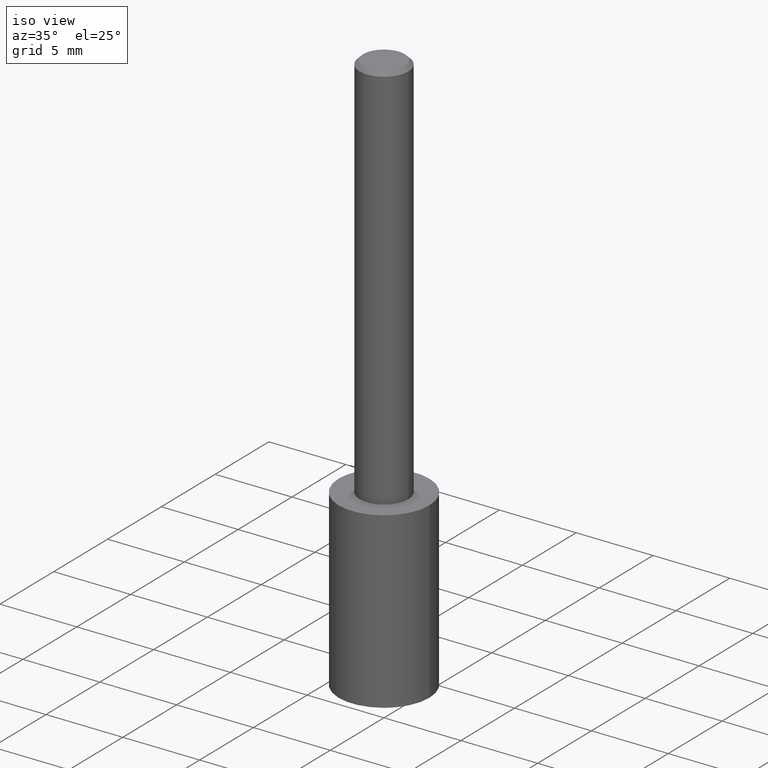
[diagram: clean part render]
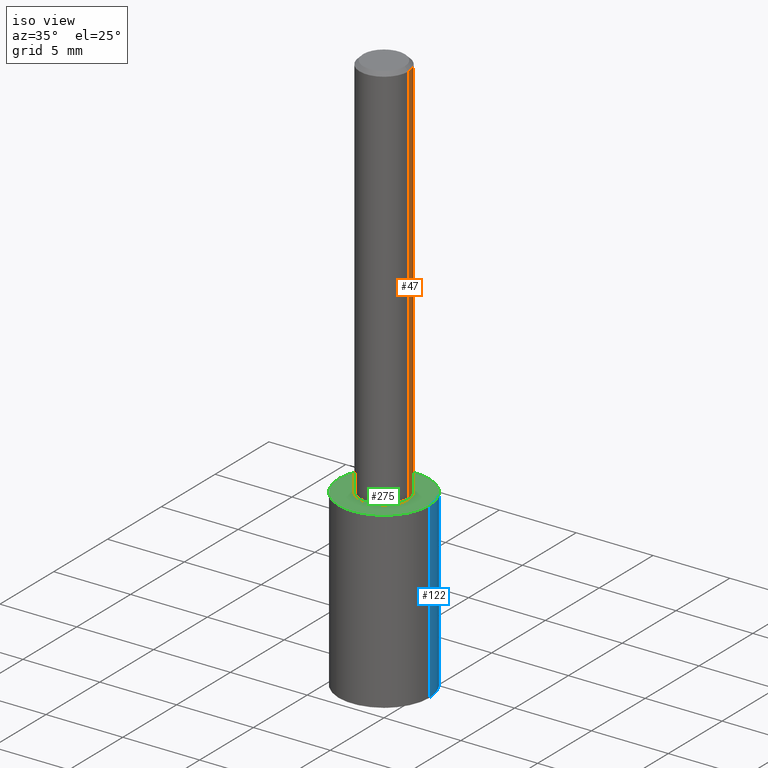
[diagram: same view with three faces highlighted in distinct colors, each labeled with its STEP entity id]
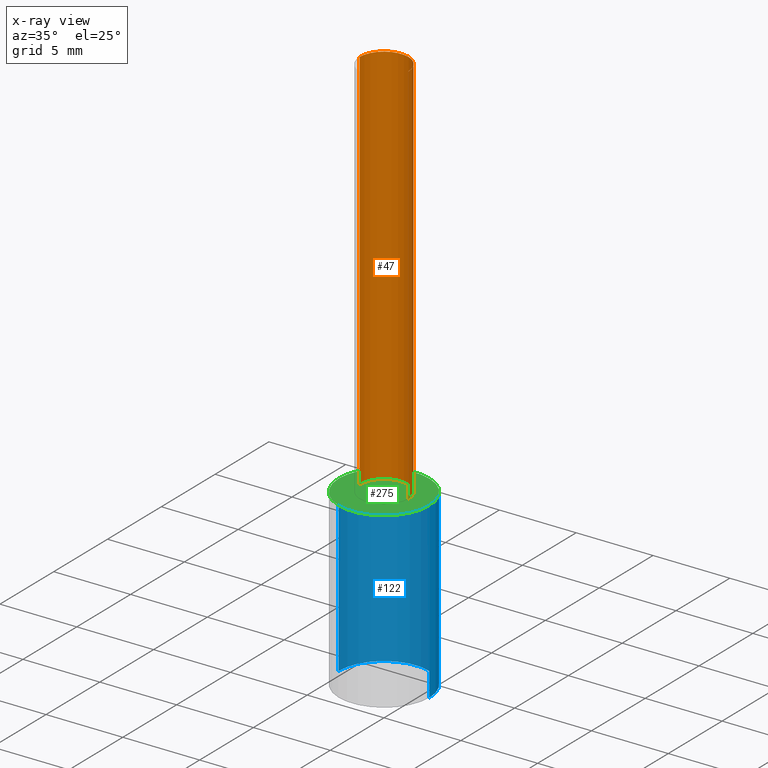
[diagram: x-ray of the same camera — body ghosted, the three highlighted faces saturated]
A machine part, iso view with three faces highlighted in distinct colors.
The next image is the same camera in x-ray (body ghosted, the three faces saturated) — at least one of them is partly hidden behind the body in this view.
Their STEP definitions:

[orange] entity #47 — the highlighted cylindrical surface (edge-blend (fillet) strip) has radius 1.5875 mm, axis along (-0, 0, 1).
#9 = DIRECTION ( 'NONE',  ( -2.445468806185136597E-29, 3.491481338843145583E-15, 1.000000000000000000 ) ) ;
#27 = AXIS2_PLACEMENT_3D ( 'NONE', #277, #9, #39 ) ;
#34 = CARTESIAN_POINT ( 'NONE',  ( 0.06250000000000006939, -4.364351673553921624E-16, 3.047610484872463374E-30 ) ) ;
#36 = VECTOR ( 'NONE', #120, 39.37007874015748143 ) ;
#38 = EDGE_CURVE ( 'NONE', #308, #177, #187, .T. ) ;
#39 = DIRECTION ( 'NONE',  ( 1.000000000000000000, -6.982962677686266711E-15, 0.000000000000000000 ) ) ;
#47 = ADVANCED_FACE ( 'NONE', ( #225 ), #228, .T. ) ;
#54 = EDGE_CURVE ( 'NONE', #177, #210, #90, .T. ) ;
#59 = CARTESIAN_POINT ( 'NONE',  ( -0.06250000000000000000, -1.318017778347336672E-15, -0.009375000000000069042 ) ) ;
#75 = EDGE_CURVE ( 'NONE', #308, #98, #220, .T. ) ;
#90 = LINE ( 'NONE', #332, #158 ) ;
#98 = VERTEX_POINT ( 'NONE', #173 ) ;
#107 = AXIS2_PLACEMENT_3D ( 'NONE', #199, #222, #140 ) ;
#110 = CIRCLE ( 'NONE', #27, 0.06250000000000000000 ) ;
#120 = DIRECTION ( 'NONE',  ( -2.445468806185136877E-29, 3.491481338843145188E-15, 1.000000000000000000 ) ) ;
#140 = DIRECTION ( 'NONE',  ( 1.000000000000000000, -6.982962677686266711E-15, 4.876176775795935793E-29 ) ) ;
#142 = DIRECTION ( 'NONE',  ( -2.445468806185136597E-29, 3.491481338843145583E-15, 1.000000000000000000 ) ) ;
#143 = CARTESIAN_POINT ( 'NONE',  ( -0.06250000000000012490, -1.318017778347335489E-15, -1.000000000000000222 ) ) ;
#151 = CARTESIAN_POINT ( 'NONE',  ( 0.06250000000000012490, -3.927916506198539224E-15, -1.000000000000000222 ) ) ;
#158 = VECTOR ( 'NONE', #278, 39.37007874015748143 ) ;
#173 = CARTESIAN_POINT ( 'NONE',  ( 0.06250000000000000000, -4.691678049070464390E-16, -0.009375000000000069042 ) ) ;
#177 = VERTEX_POINT ( 'NONE', #143 ) ;
#183 = ORIENTED_EDGE ( 'NONE', *, *, #75, .F. ) ;
#187 = CIRCLE ( 'NONE', #230, 0.06250000000000012490 ) ;
#199 = CARTESIAN_POINT ( 'NONE',  ( 0.000000000000000000, 0.000000000000000000, 0.000000000000000000 ) ) ;
#201 = EDGE_CURVE ( 'NONE', #98, #210, #110, .T. ) ;
#205 = ORIENTED_EDGE ( 'NONE', *, *, #38, .T. ) ;
#210 = VERTEX_POINT ( 'NONE', #59 ) ;
#220 = LINE ( 'NONE', #34, #36 ) ;
#221 = ORIENTED_EDGE ( 'NONE', *, *, #201, .F. ) ;
#222 = DIRECTION ( 'NONE',  ( -2.445468806185136597E-29, 3.491481338843145583E-15, 1.000000000000000000 ) ) ;
#225 = FACE_OUTER_BOUND ( 'NONE', #320, .T. ) ;
#228 = CYLINDRICAL_SURFACE ( 'NONE', #107, 0.06250000000000006939 ) ;
#230 = AXIS2_PLACEMENT_3D ( 'NONE', #312, #142, #251 ) ;
#251 = DIRECTION ( 'NONE',  ( 1.000000000000000000, -6.982962677686264344E-15, 0.000000000000000000 ) ) ;
#277 = CARTESIAN_POINT ( 'NONE',  ( 2.292627005798582375E-31, -3.273263755165473266E-17, -0.009375000000000069042 ) ) ;
#278 = DIRECTION ( 'NONE',  ( -2.445468806185136877E-29, 3.491481338843145188E-15, 1.000000000000000000 ) ) ;
#306 = ORIENTED_EDGE ( 'NONE', *, *, #54, .T. ) ;
#308 = VERTEX_POINT ( 'NONE', #151 ) ;
#312 = CARTESIAN_POINT ( 'NONE',  ( 2.445468806185137438E-29, -3.491481338843146371E-15, -1.000000000000000222 ) ) ;
#320 = EDGE_LOOP ( 'NONE', ( #205, #306, #221, #183 ) ) ;
#332 = CARTESIAN_POINT ( 'NONE',  ( -0.06250000000000006939, 4.440892098500631092E-16, -3.074334431409319267E-30 ) ) ;

[blue] entity #122 — the highlighted cylindrical surface (partial cylindrical patch) has radius 2.9502 mm, axis along (-0, 0, 1).
#14 = CARTESIAN_POINT ( 'NONE',  ( 0.1161500000000000032, -4.302552453856406512E-15, -1.000000000000000222 ) ) ;
#22 = EDGE_LOOP ( 'NONE', ( #295, #207, #69, #128 ) ) ;
#45 = CARTESIAN_POINT ( 'NONE',  ( -0.1161500000000000310, -4.222822284559862787E-15, -1.445838365505297096 ) ) ;
#68 = CARTESIAN_POINT ( 'NONE',  ( 2.445468806185136877E-29, -3.491481338843145977E-15, -1.000000000000000222 ) ) ;
#69 = ORIENTED_EDGE ( 'NONE', *, *, #198, .F. ) ;
#74 = CIRCLE ( 'NONE', #280, 0.1161500000000000032 ) ;
#85 = DIRECTION ( 'NONE',  ( -2.445468806185136597E-29, 3.491481338843145583E-15, 1.000000000000000000 ) ) ;
#88 = CIRCLE ( 'NONE', #217, 0.1161500000000000032 ) ;
#115 = VERTEX_POINT ( 'NONE', #163 ) ;
#117 = CARTESIAN_POINT ( 'NONE',  ( 0.1161500000000000310, -5.859188787158480302E-15, -1.445838365505297096 ) ) ;
#119 = DIRECTION ( 'NONE',  ( -2.445468806185136597E-29, 3.491481338843145583E-15, 1.000000000000000000 ) ) ;
#122 = ADVANCED_FACE ( 'NONE', ( #215 ), #169, .T. ) ;
#127 = CARTESIAN_POINT ( 'NONE',  ( -0.1161500000000000032, -2.666185951257790180E-15, -1.000000000000000222 ) ) ;
#128 = ORIENTED_EDGE ( 'NONE', *, *, #175, .F. ) ;
#145 = CARTESIAN_POINT ( 'NONE',  ( 3.535752621628908194E-29, -5.048117672145220556E-15, -1.445838365505297096 ) ) ;
#152 = AXIS2_PLACEMENT_3D ( 'NONE', #329, #85, #326 ) ;
#153 = EDGE_CURVE ( 'NONE', #204, #314, #74, .T. ) ;
#163 = CARTESIAN_POINT ( 'NONE',  ( -0.1161500000000000032, -3.444504117908826680E-15, -1.000000000000000222 ) ) ;
#169 = CYLINDRICAL_SURFACE ( 'NONE', #152, 0.1161500000000000032 ) ;
#175 = EDGE_CURVE ( 'NONE', #204, #286, #255, .T. ) ;
#186 = CARTESIAN_POINT ( 'NONE',  ( 0.1161500000000000032, -4.302552453856405723E-15, -1.000000000000000222 ) ) ;
#198 = EDGE_CURVE ( 'NONE', #286, #115, #88, .T. ) ;
#204 = VERTEX_POINT ( 'NONE', #117 ) ;
#207 = ORIENTED_EDGE ( 'NONE', *, *, #335, .T. ) ;
#215 = FACE_OUTER_BOUND ( 'NONE', #22, .T. ) ;
#217 = AXIS2_PLACEMENT_3D ( 'NONE', #68, #119, #284 ) ;
#223 = DIRECTION ( 'NONE',  ( -2.445468806185136877E-29, 3.491481338843145188E-15, 1.000000000000000000 ) ) ;
#229 = DIRECTION ( 'NONE',  ( -2.445468806185136597E-29, 3.491481338843145583E-15, 1.000000000000000000 ) ) ;
#238 = LINE ( 'NONE', #127, #276 ) ;
#255 = LINE ( 'NONE', #14, #328 ) ;
#263 = DIRECTION ( 'NONE',  ( -2.445468806185136877E-29, 3.491481338843145188E-15, 1.000000000000000000 ) ) ;
#276 = VECTOR ( 'NONE', #263, 39.37007874015748143 ) ;
#279 = DIRECTION ( 'NONE',  ( 1.000000000000000000, -6.982962677686265922E-15, 0.000000000000000000 ) ) ;
#280 = AXIS2_PLACEMENT_3D ( 'NONE', #145, #229, #279 ) ;
#284 = DIRECTION ( 'NONE',  ( 1.000000000000000000, -6.982962677686265922E-15, 0.000000000000000000 ) ) ;
#286 = VERTEX_POINT ( 'NONE', #186 ) ;
#295 = ORIENTED_EDGE ( 'NONE', *, *, #153, .T. ) ;
#314 = VERTEX_POINT ( 'NONE', #45 ) ;
#326 = DIRECTION ( 'NONE',  ( 1.000000000000000000, -6.982962677686265922E-15, 0.000000000000000000 ) ) ;
#328 = VECTOR ( 'NONE', #223, 39.37007874015748143 ) ;
#329 = CARTESIAN_POINT ( 'NONE',  ( 2.445468806185137438E-29, -3.491481338843146371E-15, -1.000000000000000222 ) ) ;
#335 = EDGE_CURVE ( 'NONE', #314, #115, #238, .T. ) ;

[green] entity #275 — the highlighted planar face has unit normal (0, -0, -1).
#1 = EDGE_LOOP ( 'NONE', ( #71, #5 ) ) ;
#5 = ORIENTED_EDGE ( 'NONE', *, *, #297, .T. ) ;
#41 = DIRECTION ( 'NONE',  ( -2.445468806185136597E-29, 3.491481338843145583E-15, 1.000000000000000000 ) ) ;
#48 = DIRECTION ( 'NONE',  ( 2.438088387897960049E-29, -3.491481338843145188E-15, -1.000000000000000000 ) ) ;
#53 = FACE_OUTER_BOUND ( 'NONE', #1, .T. ) ;
#66 = AXIS2_PLACEMENT_3D ( 'NONE', #96, #48, #316 ) ;
#68 = CARTESIAN_POINT ( 'NONE',  ( 2.445468806185136877E-29, -3.491481338843145977E-15, -1.000000000000000222 ) ) ;
#70 = DIRECTION ( 'NONE',  ( 1.000000000000000000, -6.982962677686265922E-15, 0.000000000000000000 ) ) ;
#71 = ORIENTED_EDGE ( 'NONE', *, *, #198, .T. ) ;
#88 = CIRCLE ( 'NONE', #217, 0.1161500000000000032 ) ;
#94 = AXIS2_PLACEMENT_3D ( 'NONE', #264, #41, #70 ) ;
#96 = CARTESIAN_POINT ( 'NONE',  ( 3.266665215176512903E-29, -2.315481341570540478E-15, -1.000000000000000222 ) ) ;
#115 = VERTEX_POINT ( 'NONE', #163 ) ;
#119 = DIRECTION ( 'NONE',  ( -2.445468806185136597E-29, 3.491481338843145583E-15, 1.000000000000000000 ) ) ;
#163 = CARTESIAN_POINT ( 'NONE',  ( -0.1161500000000000032, -3.444504117908826680E-15, -1.000000000000000222 ) ) ;
#179 = CIRCLE ( 'NONE', #94, 0.1161500000000000032 ) ;
#186 = CARTESIAN_POINT ( 'NONE',  ( 0.1161500000000000032, -4.302552453856405723E-15, -1.000000000000000222 ) ) ;
#198 = EDGE_CURVE ( 'NONE', #286, #115, #88, .T. ) ;
#217 = AXIS2_PLACEMENT_3D ( 'NONE', #68, #119, #284 ) ;
#260 = PLANE ( 'NONE',  #66 ) ;
#264 = CARTESIAN_POINT ( 'NONE',  ( 2.445468806185136877E-29, -3.491481338843145977E-15, -1.000000000000000222 ) ) ;
#275 = ADVANCED_FACE ( 'NONE', ( #53 ), #260, .F. ) ;
#284 = DIRECTION ( 'NONE',  ( 1.000000000000000000, -6.982962677686265922E-15, 0.000000000000000000 ) ) ;
#286 = VERTEX_POINT ( 'NONE', #186 ) ;
#297 = EDGE_CURVE ( 'NONE', #115, #286, #179, .T. ) ;
#316 = DIRECTION ( 'NONE',  ( -1.000000000000000000, 6.982962677686265922E-15, -4.876176775795935793E-29 ) ) ;